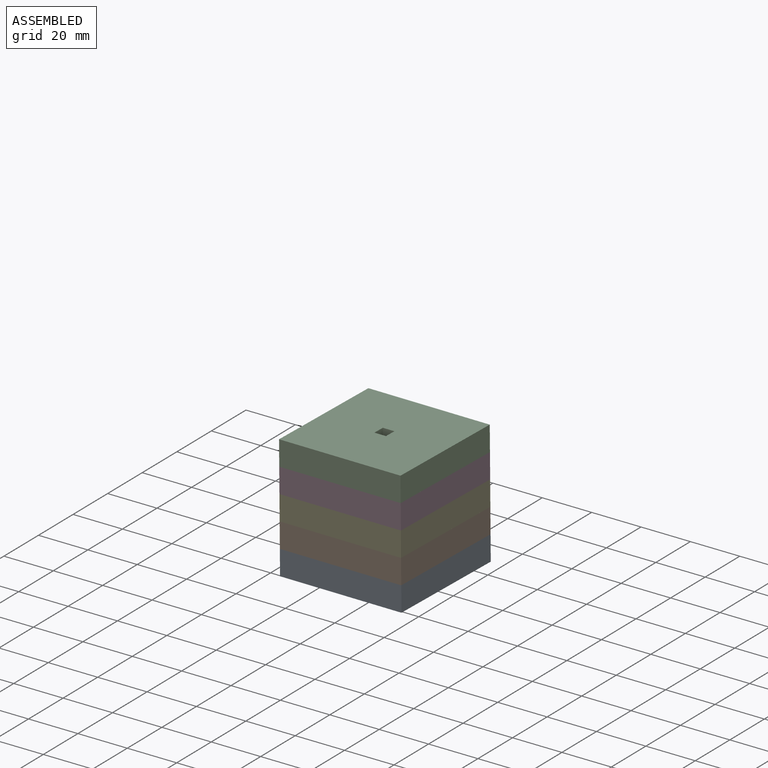
[diagram: assembled view]
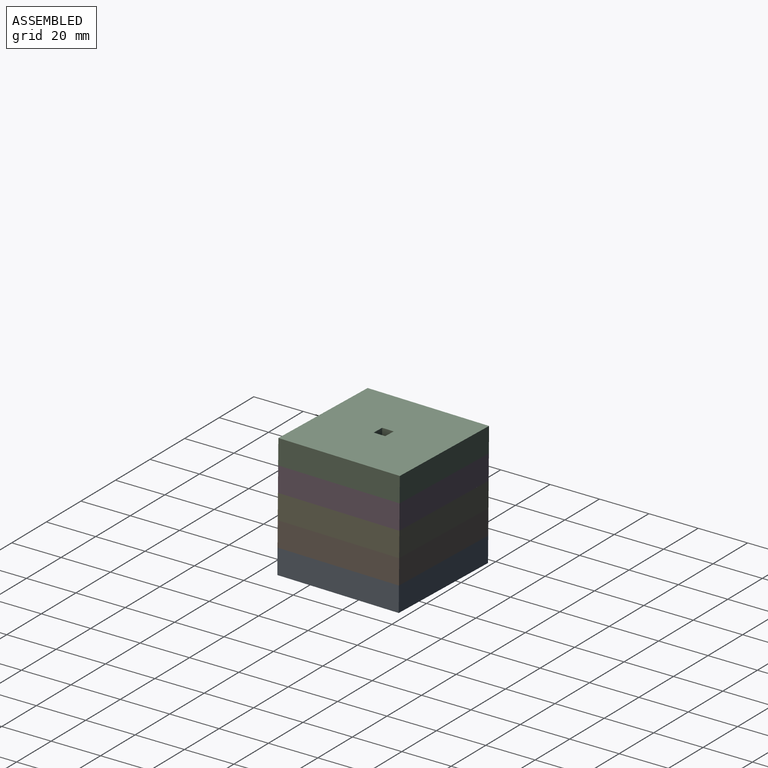
[diagram: assembled view, second angle]
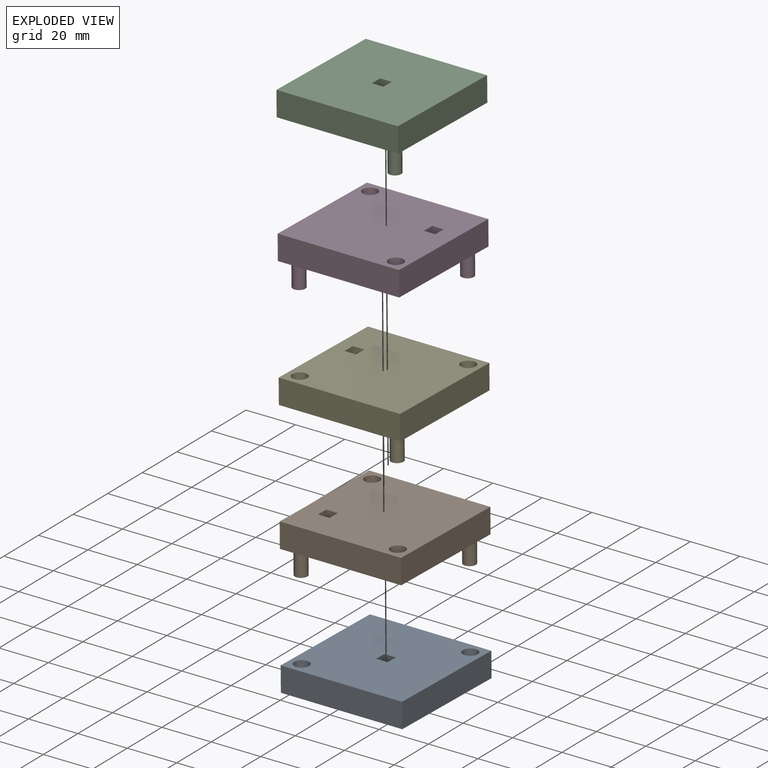
[diagram: exploded view]
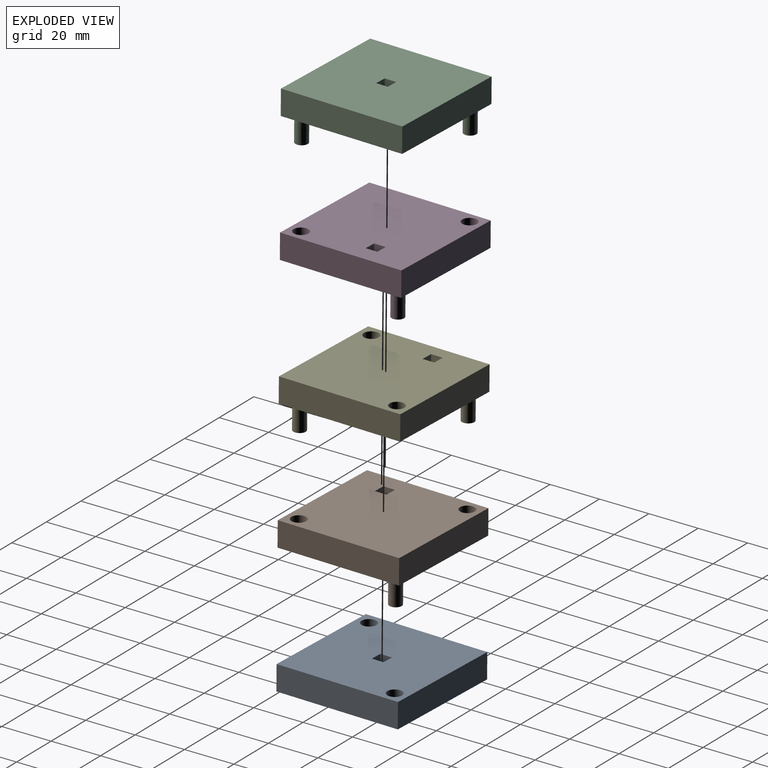
[diagram: exploded view, second angle]
ASSEMBLY  parts=5 mates=4
PART A: 12 faces, bbox 50x50x10 mm
  f0: plane 50x10mm, normal (-1,0,0), area 500mm2, adj f1,f9,f10,f11
  f1: plane 50x10mm, normal (0,-1,0), area 500mm2, adj f0,f2,f10,f11
  f2: plane 50x10mm, normal (1,0,0), area 500mm2, adj f1,f9,f10,f11
  f3: plane 10x4.76mm, normal (0,-1,0), area 47.6mm2, adj f4,f6,f10,f11
  f4: plane 10x4.76mm, normal (-1,0,0), area 47.6mm2, adj f3,f5,f10,f11
  f5: plane 10x4.76mm, normal (0,1,0), area 47.6mm2, adj f4,f6,f10,f11
  f6: plane 10x4.76mm, normal (1,0,0), area 47.6mm2, adj f3,f5,f10,f11
  f7: cylinder r=3mm len=10mm, axis (0,0,-1), area 188.5mm2, adj f10,f11
  f8: cylinder r=3mm len=10mm, axis (0,0,-1), area 188.5mm2, adj f10,f11
  f9: plane 50x10mm, normal (0,1,0), area 500mm2, adj f0,f2,f10,f11
  f10: plane 50x50mm, normal (0,0,1), area 2420.8mm2, adj f0,f1,f2,f3,f4,f5,f6,f7
  f11: plane 50x50mm, normal (0,0,-1), area 2420.8mm2, adj f0,f1,f2,f3,f4,f5,f6,f7
PART B: 32 faces, bbox 50x20x50 mm
  f0: plane 5x4.76mm, normal (0,0,1), area 23.8mm2, adj f1,f14,f25,f27
  f1: plane 15.38x5mm, normal (-1,0,0), area 76.9mm2, adj f0,f2,f25,f27
  f2: plane 19.23x5mm, normal (0,0,-1), area 96.1mm2, adj f1,f3,f25,f27
  f3: plane 9.45x5mm, normal (1,0,0), area 47.3mm2, adj f2,f4,f25,f27
  f4: plane 8.52x5mm, normal (0,0,1), area 42.6mm2, adj f3,f5,f25,f27
  f5: plane 5x4.78mm, normal (1,0,0), area 23.9mm2, adj f4,f19,f25,f27
  f6: plane 7.19x5mm, normal (1,0,0), area 35.9mm2, adj f7,f19,f25,f27
  f7: plane 5x4.27mm, normal (0,0,1), area 21.4mm2, adj f6,f8,f25,f27
  f8: plane 5x4.78mm, normal (1,0,0), area 23.9mm2, adj f7,f20,f25,f27
  f9: plane 30.95x5mm, normal (-1,0,0), area 154.8mm2, adj f10,f20,f25,f27
  f10: plane 29.43x5mm, normal (0,0,1), area 147.2mm2, adj f9,f11,f25,f27
  f11: plane 24.5x5mm, normal (1,0,0), area 122.5mm2, adj f10,f12,f25,f27
  f12: plane 5x4.76mm, normal (0,0,-1), area 23.8mm2, adj f11,f13,f25,f27
  f13: plane 10.08x10mm, normal (1,0,0), area 74.2mm2, adj f12,f18,f24,f25,f26,f27
  f14: plane 14.44x10mm, normal (-1,0,0), area 96mm2, adj f0,f18,f24,f25,f26,f27
  f15: plane 50x10mm, normal (0,0,1), area 500mm2, adj f16,f23,f24,f25
  f16: plane 50x10mm, normal (-1,0,0), area 500mm2, adj f15,f17,f24,f25
  f17: plane 50x10mm, normal (0,0,-1), area 500mm2, adj f16,f23,f24,f25
  f18: plane 10x4.76mm, normal (0,0,-1), area 47.6mm2, adj f13,f14,f24,f25
  f19: plane 8.52x5mm, normal (0,0,-1), area 42.6mm2, adj f5,f6,f25,f27
  f20: plane 9.71x5mm, normal (0,0,-1), area 48.6mm2, adj f8,f9,f25,f27
  f21: cylinder r=3mm len=10mm, axis (0,1,0), area 188.5mm2, adj f24,f25
  f22: cylinder r=3mm len=10mm, axis (0,1,0), area 188.5mm2, adj f24,f25
  f23: plane 50x10mm, normal (1,0,0), area 500mm2, adj f15,f17,f24,f25
  f24: plane 50x50mm, normal (0,-1,0), area 2420.8mm2, adj f13,f14,f15,f16,f17,f18,f21,f22
  f25: plane 50x50mm, normal (0,1,0), area 1897.7mm2, adj f0,f1,f2,f3,f4,f5,f6,f7
  f26: plane 5x4.76mm, normal (0,0,1), area 23.8mm2, adj f13,f14,f24,f27
  f27: plane 30.95x29.43mm, normal (0,1,0), area 483.8mm2, adj f0,f1,f2,f3,f4,f5,f6,f7
  f28: cylinder r=2.5mm len=10mm, axis (0,-1,0), area 157.1mm2, adj f25,f29
  f29: plane 5x5mm, normal (0,1,0), area 19.6mm2, adj f28
  f30: cylinder r=2.5mm len=10mm, axis (0,-1,0), area 157.1mm2, adj f25,f31
  f31: plane 5x5mm, normal (0,1,0), area 19.6mm2, adj f30
PART C: 32 faces, bbox 50x50x20 mm
  f0: plane 14.05x10mm, normal (0,1,0), area 94mm2, adj f4,f22,f23,f24,f26,f27
  f1: plane 8.85x5mm, normal (1,0,0), area 44.2mm2, adj f5,f6,f23,f27
  f2: plane 5x4.52mm, normal (0,-1,0), area 22.6mm2, adj f9,f11,f23,f27
  f3: plane 26.32x5mm, normal (-1,0,0), area 131.6mm2, adj f12,f13,f23,f25
  f4: plane 13.15x5mm, normal (1,0,0), area 65.7mm2, adj f0,f5,f23,f27
  f5: plane 8.46x5mm, normal (0,1,0), area 42.3mm2, adj f1,f4,f23,f27
  f6: plane 5x4.76mm, normal (0,-1,0), area 23.8mm2, adj f1,f7,f23,f27
  f7: plane 5x4.08mm, normal (-1,0,0), area 20.4mm2, adj f6,f8,f23,f27
  f8: plane 8.46x5mm, normal (0,-1,0), area 42.3mm2, adj f7,f9,f23,f27
  f9: plane 13.15x5mm, normal (-1,0,0), area 65.7mm2, adj f2,f8,f23,f27
  f10: plane 5x4.76mm, normal (0,-1,0), area 23.8mm2, adj f22,f24,f25,f26
  f11: plane 10.38x5mm, normal (1,0,0), area 51.9mm2, adj f2,f12,f23,f25
  f12: plane 16.93x5mm, normal (0,-1,0), area 84.6mm2, adj f3,f11,f23,f25
  f13: plane 9.53x5mm, normal (0,1,0), area 47.6mm2, adj f3,f14,f23,f25
  f14: plane 5x4.76mm, normal (1,0,0), area 23.8mm2, adj f13,f15,f23,f25
  f15: plane 5x4.76mm, normal (0,-1,0), area 23.8mm2, adj f14,f16,f23,f25
  f16: plane 16.79x5mm, normal (1,0,0), area 84mm2, adj f15,f17,f23,f25
  f17: plane 7.4x5mm, normal (0,1,0), area 37mm2, adj f16,f22,f23,f25
  f18: plane 50x10mm, normal (-1,0,0), area 500mm2, adj f19,f21,f23,f24
  f19: plane 50x10mm, normal (0,-1,0), area 500mm2, adj f18,f20,f23,f24
  f20: plane 50x10mm, normal (1,0,0), area 500mm2, adj f19,f21,f23,f24
  f21: plane 50x10mm, normal (0,1,0), area 500mm2, adj f18,f20,f23,f24
  f22: plane 10.38x10mm, normal (-1,0,0), area 75.7mm2, adj f0,f10,f17,f23,f24,f25
  f23: plane 50x50mm, normal (0,0,1), area 2038.8mm2, adj f0,f1,f2,f3,f4,f5,f6,f7
  f24: plane 50x50mm, normal (0,0,-1), area 2477.3mm2, adj f0,f10,f18,f19,f20,f21,f22,f26
  f25: plane 26.32x16.93mm, normal (0,0,1), area 232.7mm2, adj f3,f10,f11,f12,f13,f14,f15,f16
  f26: plane 5x4.76mm, normal (1,0,0), area 23.8mm2, adj f0,f10,f24,f27
  f27: plane 21.99x17.74mm, normal (0,0,1), area 166.5mm2, adj f0,f1,f2,f4,f5,f6,f7,f8
  f28: cylinder r=2.5mm len=10mm, axis (0,0,-1), area 157.1mm2, adj f23,f29
  f29: plane 5x5mm, normal (0,0,1), area 19.6mm2, adj f28
  f30: cylinder r=2.5mm len=10mm, axis (0,0,-1), area 157.1mm2, adj f23,f31
  f31: plane 5x5mm, normal (0,0,1), area 19.6mm2, adj f30
PART D: 38 faces, bbox 50x50x20 mm
  f0: plane 20.99x5mm, normal (0,-1,0), area 104.9mm2, adj f16,f17,f30,f33
  f1: plane 9.11x5mm, normal (-1,0,0), area 45.6mm2, adj f20,f21,f30,f33
  f2: plane 33.33x10mm, normal (0,1,0), area 190.5mm2, adj f7,f8,f30,f31,f32,f33
  f3: plane 50x10mm, normal (-1,0,0), area 500mm2, adj f4,f29,f30,f31
  f4: plane 50x10mm, normal (0,-1,0), area 500mm2, adj f3,f5,f30,f31
  f5: plane 50x10mm, normal (1,0,0), area 500mm2, adj f4,f29,f30,f31
  f6: plane 28.57x10mm, normal (0,-1,0), area 166.7mm2, adj f7,f26,f30,f31,f32,f33
  f7: plane 10x4.76mm, normal (-1,0,0), area 47.6mm2, adj f2,f6,f30,f31
  f8: plane 15.73x5mm, normal (1,0,0), area 78.7mm2, adj f2,f9,f30,f33
  f9: plane 5x4.76mm, normal (0,-1,0), area 23.8mm2, adj f8,f10,f30,f33
  f10: plane 5x4.76mm, normal (1,0,0), area 23.8mm2, adj f9,f11,f30,f33
  f11: plane 5x4.76mm, normal (0,1,0), area 23.8mm2, adj f10,f12,f30,f33
  f12: plane 5x4.76mm, normal (1,0,0), area 23.8mm2, adj f11,f13,f30,f33
  f13: plane 9.53x5mm, normal (0,-1,0), area 47.6mm2, adj f12,f14,f30,f33
  f14: plane 9.53x5mm, normal (-1,0,0), area 47.6mm2, adj f13,f15,f30,f33
  f15: plane 5x4.76mm, normal (0,-1,0), area 23.8mm2, adj f14,f16,f30,f33
  f16: plane 9.53x5mm, normal (1,0,0), area 47.6mm2, adj f0,f15,f30,f33
  f17: plane 9.94x5mm, normal (-1,0,0), area 49.7mm2, adj f0,f18,f30,f33
  f18: plane 5x4.76mm, normal (0,1,0), area 23.8mm2, adj f17,f19,f30,f33
  f19: plane 5x4.76mm, normal (1,0,0), area 23.8mm2, adj f18,f20,f30,f33
  f20: plane 9.18x5mm, normal (0,1,0), area 45.9mm2, adj f1,f19,f30,f33
  f21: plane 7.04x5mm, normal (0,1,0), area 35.2mm2, adj f1,f22,f30,f33
  f22: plane 5x4.76mm, normal (-1,0,0), area 23.8mm2, adj f21,f23,f30,f33
  f23: plane 5x4.76mm, normal (0,1,0), area 23.8mm2, adj f22,f24,f30,f33
  f24: plane 5x4.76mm, normal (1,0,0), area 23.8mm2, adj f23,f25,f30,f33
  f25: plane 5x4.76mm, normal (0,1,0), area 23.8mm2, adj f24,f26,f30,f33
  f26: plane 6.21x5mm, normal (-1,0,0), area 31mm2, adj f6,f25,f30,f33
  f27: cylinder r=3mm len=10mm, axis (0,0,-1), area 188.5mm2, adj f30,f31
  f28: cylinder r=3mm len=10mm, axis (0,0,-1), area 188.5mm2, adj f30,f31
  f29: plane 50x10mm, normal (0,1,0), area 500mm2, adj f3,f5,f30,f31
  f30: plane 50x50mm, normal (0,0,1), area 1861.6mm2, adj f0,f1,f2,f3,f4,f5,f6,f7
  f31: plane 50x50mm, normal (0,0,-1), area 2420.8mm2, adj f2,f3,f4,f5,f6,f7,f27,f28
  f32: plane 5x4.76mm, normal (1,0,0), area 23.8mm2, adj f2,f6,f31,f33
  f33: plane 35.28x25.26mm, normal (0,0,1), area 519.9mm2, adj f0,f1,f2,f6,f8,f9,f10,f11
  f34: cylinder r=2.5mm len=10mm, axis (0,0,-1), area 157.1mm2, adj f30,f35
  f35: plane 5x5mm, normal (0,0,1), area 19.6mm2, adj f34
  f36: cylinder r=2.5mm len=10mm, axis (0,0,-1), area 157.1mm2, adj f30,f37
  f37: plane 5x5mm, normal (0,0,1), area 19.6mm2, adj f36
PART E: 38 faces, bbox 50x20x50 mm
  f0: plane 6.37x5mm, normal (1,0,0), area 31.9mm2, adj f1,f20,f31,f33
  f1: plane 5x4.76mm, normal (0,0,-1), area 23.8mm2, adj f0,f2,f31,f33
  f2: plane 6.37x5mm, normal (-1,0,0), area 31.9mm2, adj f1,f3,f31,f33
  f3: plane 9.39x5mm, normal (0,0,-1), area 46.9mm2, adj f2,f4,f31,f33
  f4: plane 21.27x5mm, normal (-1,0,0), area 106.3mm2, adj f3,f5,f31,f33
  f5: plane 17.05x5mm, normal (0,0,1), area 85.2mm2, adj f4,f6,f31,f33
  f6: plane 5x2.78mm, normal (1,0,0), area 13.9mm2, adj f5,f7,f31,f33
  f7: plane 7.6x5mm, normal (0,0,1), area 38mm2, adj f6,f8,f31,f33
  f8: plane 5x0.64mm, normal (1,0,0), area 3.2mm2, adj f7,f9,f31,f33
  f9: plane 5x3.86mm, normal (0,0,1), area 19.3mm2, adj f8,f10,f31,f33
  f10: plane 5x4.76mm, normal (-1,0,0), area 23.8mm2, adj f9,f11,f31,f33
  f11: plane 5x4.76mm, normal (0,0,1), area 23.8mm2, adj f10,f21,f31,f33
  f12: plane 5x3.56mm, normal (-1,0,0), area 17.8mm2, adj f13,f22,f31,f33
  f13: plane 7.52x5mm, normal (0,0,-1), area 37.6mm2, adj f12,f14,f31,f33
  f14: plane 5x4.47mm, normal (1,0,0), area 22.3mm2, adj f13,f15,f31,f33
  f15: plane 7.15x5mm, normal (0,0,1), area 35.7mm2, adj f14,f16,f31,f33
  f16: plane 5x4.76mm, normal (1,0,0), area 23.8mm2, adj f15,f17,f31,f33
  f17: plane 5.44x5mm, normal (0,0,-1), area 27.2mm2, adj f16,f18,f31,f33
  f18: plane 5x3.29mm, normal (1,0,0), area 16.4mm2, adj f17,f19,f31,f33
  f19: plane 28.62x10mm, normal (0,0,1), area 166.9mm2, adj f18,f29,f30,f31,f32,f33
  f20: plane 20.95x10mm, normal (0,0,-1), area 128.6mm2, adj f0,f29,f30,f31,f32,f33
  f21: plane 8.88x5mm, normal (1,0,0), area 44.4mm2, adj f11,f22,f31,f33
  f22: plane 20.99x5mm, normal (0,0,-1), area 104.9mm2, adj f12,f21,f31,f33
  f23: plane 50x10mm, normal (0,0,-1), area 500mm2, adj f24,f26,f30,f31
  f24: plane 50x10mm, normal (1,0,0), area 500mm2, adj f23,f25,f30,f31
  f25: plane 50x10mm, normal (0,0,1), area 500mm2, adj f24,f26,f30,f31
  f26: plane 50x10mm, normal (-1,0,0), area 500mm2, adj f23,f25,f30,f31
  f27: cylinder r=3mm len=10mm, axis (0,1,0), area 188.5mm2, adj f30,f31
  f28: cylinder r=3mm len=10mm, axis (0,1,0), area 188.5mm2, adj f30,f31
  f29: plane 10x4.76mm, normal (1,0,0), area 47.6mm2, adj f19,f20,f30,f31
  f30: plane 50x50mm, normal (0,-1,0), area 2420.8mm2, adj f19,f20,f23,f24,f25,f26,f27,f28
  f31: plane 50x50mm, normal (0,1,0), area 1928mm2, adj f0,f1,f2,f3,f4,f5,f6,f7
  f32: plane 5x4.76mm, normal (-1,0,0), area 23.8mm2, adj f19,f20,f30,f33
  f33: plane 33.27x28.98mm, normal (0,1,0), area 453.5mm2, adj f0,f1,f2,f3,f4,f5,f6,f7
  f34: cylinder r=2.5mm len=10mm, axis (0,-1,0), area 157.1mm2, adj f31,f35
  f35: plane 5x5mm, normal (0,1,0), area 19.6mm2, adj f34
  f36: cylinder r=2.5mm len=10mm, axis (0,-1,0), area 157.1mm2, adj f31,f37
  f37: plane 5x5mm, normal (0,1,0), area 19.6mm2, adj f36
PLACE A rot(axis=(0.72,0.7,0),179.5deg) t=(108.04,1.31,42.41)mm
PLACE B rot(axis=(-0.59,-0.57,0.57),119.6deg) t=(83.58,26.9,47.13)mm
PLACE C rot(axis=(0.01,1,0),179.5deg) t=(108.87,51.37,77.32)mm
PLACE D rot(axis=(1,-0.01,0),179.9deg) t=(57.82,2.52,66.93)mm
PLACE E rot(axis=(-1,0.01,-0.02),90.1deg) t=(101.33,27.59,57.29)mm
MATE fastened D.f36 <-> E.f28  axis (0.01,0,-1) through (103.99,46.44,52.28)mm
MATE fastened E.f34 <-> B.f22  axis (0.01,0,-1) through (103.15,6.43,42.35)mm
MATE fastened C.f28 <-> D.f27  axis (0.01,0,-1) through (102.97,6.47,62.35)mm
MATE fastened B.f28 <-> A.f7  axis (0.01,0,-1) through (63.26,7.34,31.97)mm
